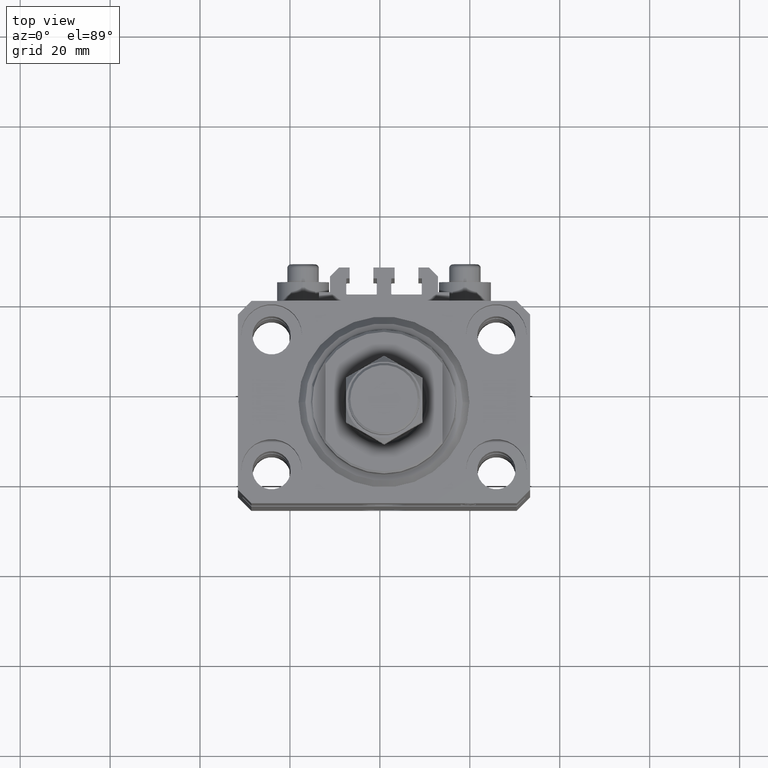
[diagram: clean part render]
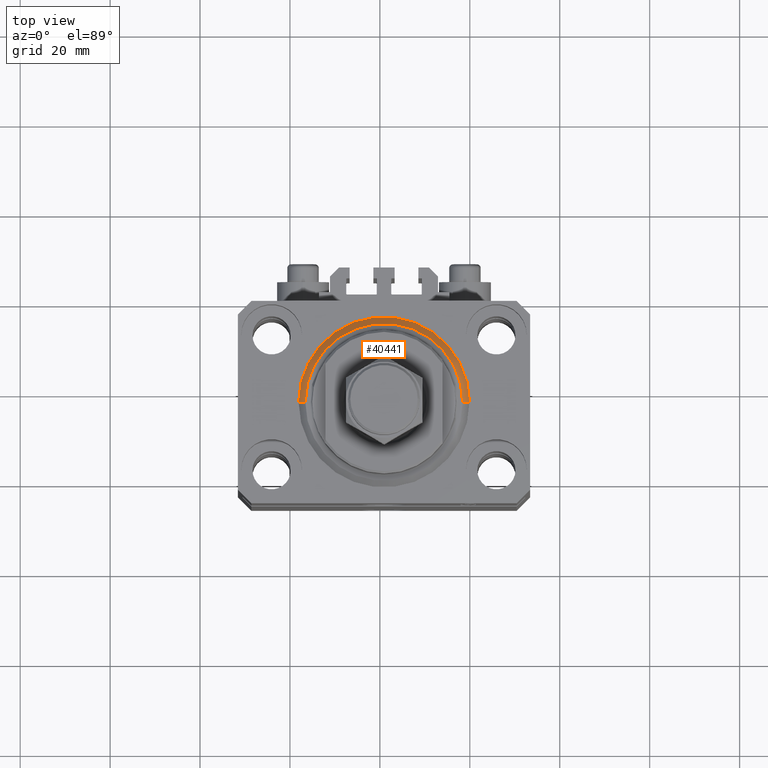
[diagram: same view with one face highlighted and labeled with its STEP entity id]
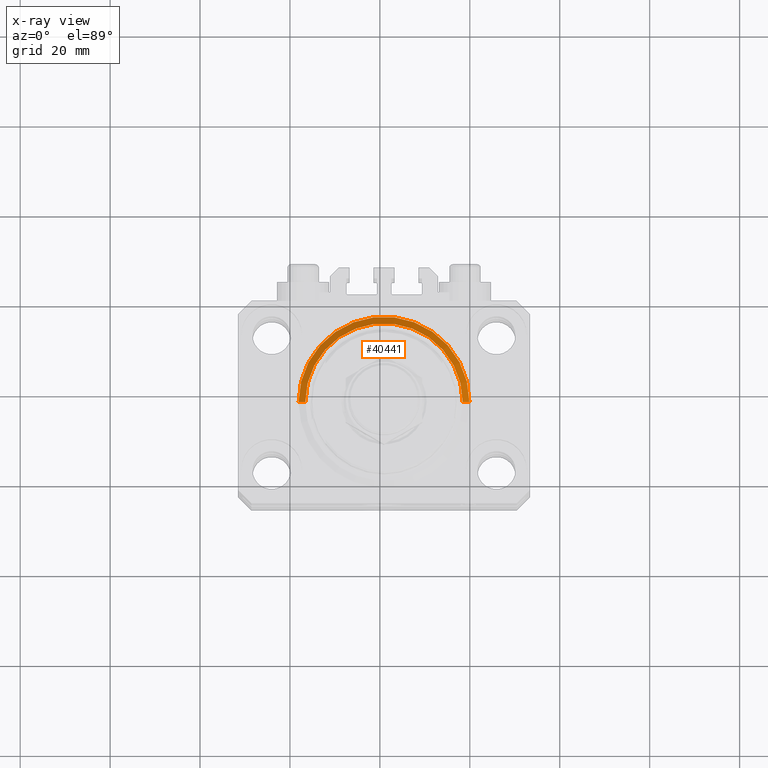
[diagram: x-ray of the same camera — body ghosted, the highlighted face saturated]
A machine part, top view. The second image highlights one B-rep face of the part: STEP entity #40441.
The next image is the same camera in x-ray: the body ghosted, the highlighted face saturated — about 0% of this face is hidden behind the body in this view.
In plain terms, the highlighted conical surface has half-angle 45 deg.
Its self-contained STEP definition (entity closure, byte-faithful):
#745 = CONICAL_SURFACE ( 'NONE', #38573, 19.00000000000000000, 0.7853981633974492782 ) ;
#2426 = CARTESIAN_POINT ( 'NONE',  ( 0.000000000000000000, 0.000000000000000000, 0.000000000000000000 ) ) ;
#4269 = CIRCLE ( 'NONE', #16073, 19.00000000000000000 ) ;
#6656 = DIRECTION ( 'NONE',  ( -0.7071067811865483499, 8.659560562354943952E-17, 0.7071067811865467956 ) ) ;
#8665 = CARTESIAN_POINT ( 'NONE',  ( 19.00000000000000000, 0.000000000000000000, 1.500000000000004885 ) ) ;
#8690 = CIRCLE ( 'NONE', #35487, 17.49999999999999289 ) ;
#9977 = DIRECTION ( 'NONE',  ( -0.000000000000000000, -0.000000000000000000, 1.000000000000000000 ) ) ;
#10020 = ORIENTED_EDGE ( 'NONE', *, *, #43064, .F. ) ;
#10262 = ORIENTED_EDGE ( 'NONE', *, *, #24901, .F. ) ;
#10811 = CARTESIAN_POINT ( 'NONE',  ( -19.00000000000000000, 0.000000000000000000, 1.500000000000004885 ) ) ;
#12514 = EDGE_CURVE ( 'NONE', #44174, #31941, #40957, .T. ) ;
#13814 = CARTESIAN_POINT ( 'NONE',  ( -19.00000000000000000, 2.326828918379970970E-15, 1.500000000000004885 ) ) ;
#15957 = ORIENTED_EDGE ( 'NONE', *, *, #47739, .F. ) ;
#16073 = AXIS2_PLACEMENT_3D ( 'NONE', #48237, #9977, #30401 ) ;
#20184 = CARTESIAN_POINT ( 'NONE',  ( 17.49999999999999289, 0.000000000000000000, 0.000000000000000000 ) ) ;
#21328 = FACE_OUTER_BOUND ( 'NONE', #45666, .T. ) ;
#23973 = DIRECTION ( 'NONE',  ( 0.7071067811865483499, 0.000000000000000000, 0.7071067811865467956 ) ) ;
#24163 = DIRECTION ( 'NONE',  ( 1.000000000000000000, 0.000000000000000000, 0.000000000000000000 ) ) ;
#24407 = DIRECTION ( 'NONE',  ( -0.000000000000000000, -0.000000000000000000, -1.000000000000000000 ) ) ;
#24901 = EDGE_CURVE ( 'NONE', #32791, #31941, #4269, .T. ) ;
#25042 = CARTESIAN_POINT ( 'NONE',  ( 0.000000000000000000, 0.000000000000000000, 1.500000000000004885 ) ) ;
#25272 = VERTEX_POINT ( 'NONE', #20184 ) ;
#30401 = DIRECTION ( 'NONE',  ( 1.000000000000000000, 0.000000000000000000, 0.000000000000000000 ) ) ;
#31941 = VERTEX_POINT ( 'NONE', #10811 ) ;
#32791 = VERTEX_POINT ( 'NONE', #39051 ) ;
#34053 = VECTOR ( 'NONE', #6656, 1000.000000000000000 ) ;
#35487 = AXIS2_PLACEMENT_3D ( 'NONE', #2426, #24407, #24163 ) ;
#36398 = DIRECTION ( 'NONE',  ( 1.000000000000000000, 0.000000000000000000, 0.000000000000000000 ) ) ;
#38573 = AXIS2_PLACEMENT_3D ( 'NONE', #25042, #40093, #36398 ) ;
#39051 = CARTESIAN_POINT ( 'NONE',  ( 19.00000000000000000, 2.326828918379970970E-15, 1.500000000000004885 ) ) ;
#40093 = DIRECTION ( 'NONE',  ( -0.000000000000000000, -0.000000000000000000, 1.000000000000000000 ) ) ;
#40441 = ADVANCED_FACE ( 'NONE', ( #21328 ), #745, .T. ) ;
#40957 = LINE ( 'NONE', #13814, #34053 ) ;
#41974 = VECTOR ( 'NONE', #23973, 1000.000000000000000 ) ;
#43064 = EDGE_CURVE ( 'NONE', #44174, #25272, #8690, .T. ) ;
#44174 = VERTEX_POINT ( 'NONE', #46689 ) ;
#45517 = ORIENTED_EDGE ( 'NONE', *, *, #12514, .T. ) ;
#45666 = EDGE_LOOP ( 'NONE', ( #10020, #45517, #10262, #15957 ) ) ;
#45958 = LINE ( 'NONE', #8665, #41974 ) ;
#46689 = CARTESIAN_POINT ( 'NONE',  ( -17.49999999999999289, 2.234980408443919215E-15, 0.000000000000000000 ) ) ;
#47739 = EDGE_CURVE ( 'NONE', #25272, #32791, #45958, .T. ) ;
#48237 = CARTESIAN_POINT ( 'NONE',  ( 0.000000000000000000, 0.000000000000000000, 1.500000000000004885 ) ) ;